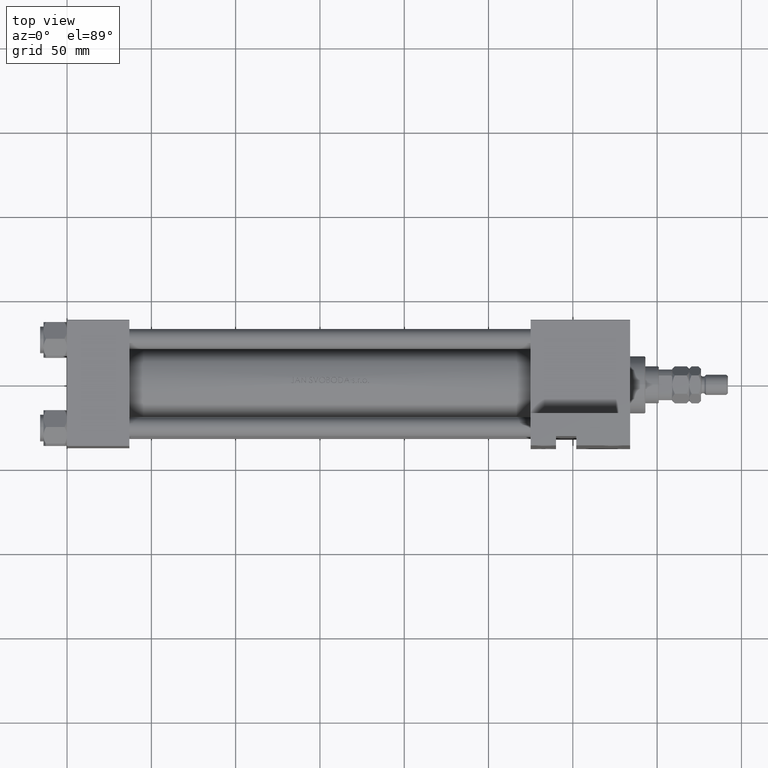
[diagram: clean part render]
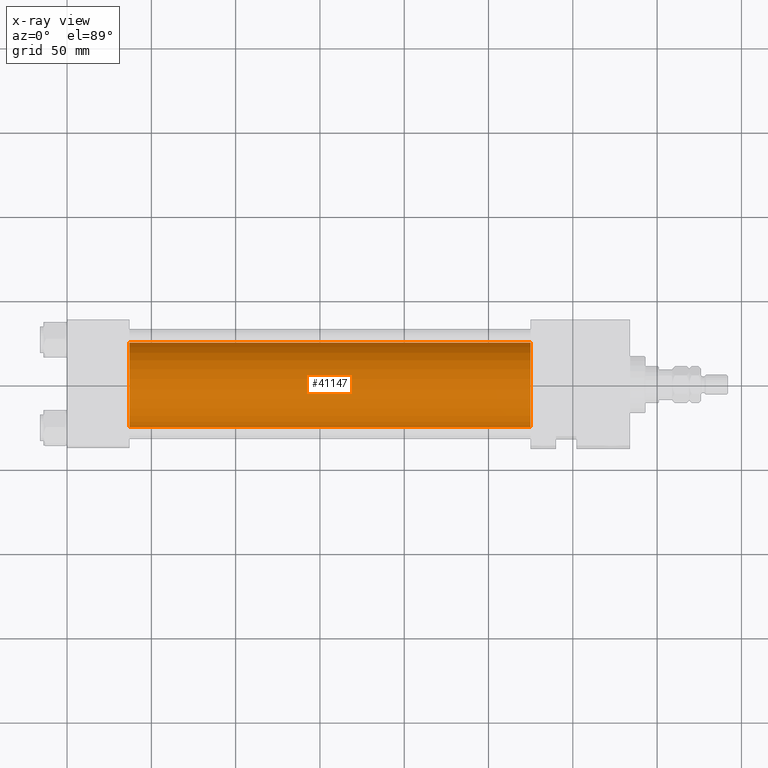
[diagram: x-ray — body ghosted, one internal face saturated and labeled with its STEP entity id]
A machine part, top view, then the same camera in x-ray: the body is ghosted and one INTERNAL B-rep face — a face not visible from any outside direction — is saturated and labeled: STEP entity #41147.
In plain terms, the highlighted cylindrical surface (partial cylindrical patch) has radius 25 mm, axis along (-1, -0, 0).
Its self-contained STEP definition (entity closure, byte-faithful):
#359 = CIRCLE ( 'NONE', #48785, 25.00000000000000000 ) ;
#935 = ORIENTED_EDGE ( 'NONE', *, *, #9558, .T. ) ;
#2788 = VERTEX_POINT ( 'NONE', #17961 ) ;
#3412 = VERTEX_POINT ( 'NONE', #16071 ) ;
#3511 = VERTEX_POINT ( 'NONE', #47892 ) ;
#4900 = DIRECTION ( 'NONE',  ( 0.000000000000000000, 0.000000000000000000, -1.000000000000000000 ) ) ;
#5128 = CARTESIAN_POINT ( 'NONE',  ( 274.9999999999999432, 3.122849337825750617E-15, -25.50000000000000355 ) ) ;
#5227 = VECTOR ( 'NONE', #30303, 1000.000000000000000 ) ;
#8125 = DIRECTION ( 'NONE',  ( 1.000000000000000000, 0.000000000000000000, 0.000000000000000000 ) ) ;
#8521 = LINE ( 'NONE', #27666, #39276 ) ;
#9558 = EDGE_CURVE ( 'NONE', #27247, #2788, #23605, .T. ) ;
#13927 = FACE_OUTER_BOUND ( 'NONE', #27203, .T. ) ;
#14498 = EDGE_CURVE ( 'NONE', #3511, #27247, #48344, .T. ) ;
#16071 = CARTESIAN_POINT ( 'NONE',  ( 37.00000000000000000, 6.123233995736772199E-17, 24.50000000000000000 ) ) ;
#17684 = AXIS2_PLACEMENT_3D ( 'NONE', #25372, #29342, #40547 ) ;
#17961 = CARTESIAN_POINT ( 'NONE',  ( 37.00000000000000000, 3.122849337825750617E-15, -25.50000000000000355 ) ) ;
#18585 = EDGE_CURVE ( 'NONE', #3412, #2788, #359, .T. ) ;
#20453 = DIRECTION ( 'NONE',  ( -1.000000000000000000, -0.000000000000000000, -0.000000000000000000 ) ) ;
#20817 = EDGE_CURVE ( 'NONE', #3511, #3412, #8521, .T. ) ;
#23605 = LINE ( 'NONE', #27569, #5227 ) ;
#25261 = ORIENTED_EDGE ( 'NONE', *, *, #14498, .T. ) ;
#25372 = CARTESIAN_POINT ( 'NONE',  ( 274.9999999999999432, 6.123233995736772199E-17, -0.5000000000000004441 ) ) ;
#27203 = EDGE_LOOP ( 'NONE', ( #25261, #935, #30931, #47078 ) ) ;
#27247 = VERTEX_POINT ( 'NONE', #5128 ) ;
#27569 = CARTESIAN_POINT ( 'NONE',  ( 274.9999999999999432, 3.122849337825750617E-15, -25.50000000000000355 ) ) ;
#27666 = CARTESIAN_POINT ( 'NONE',  ( 274.9999999999999432, 6.123233995736772199E-17, 24.50000000000000000 ) ) ;
#29342 = DIRECTION ( 'NONE',  ( -1.000000000000000000, -0.000000000000000000, -0.000000000000000000 ) ) ;
#29581 = CYLINDRICAL_SURFACE ( 'NONE', #17684, 25.00000000000000000 ) ;
#30303 = DIRECTION ( 'NONE',  ( -1.000000000000000000, -0.000000000000000000, -0.000000000000000000 ) ) ;
#30931 = ORIENTED_EDGE ( 'NONE', *, *, #18585, .F. ) ;
#31404 = CARTESIAN_POINT ( 'NONE',  ( 274.9999999999999432, 6.123233995736772199E-17, -0.5000000000000004441 ) ) ;
#35623 = AXIS2_PLACEMENT_3D ( 'NONE', #31404, #46343, #38383 ) ;
#38383 = DIRECTION ( 'NONE',  ( 0.000000000000000000, 0.000000000000000000, -1.000000000000000000 ) ) ;
#39198 = CARTESIAN_POINT ( 'NONE',  ( 37.00000000000000000, 6.123233995736772199E-17, -0.5000000000000004441 ) ) ;
#39276 = VECTOR ( 'NONE', #20453, 1000.000000000000000 ) ;
#40547 = DIRECTION ( 'NONE',  ( 0.000000000000000000, 0.000000000000000000, 1.000000000000000000 ) ) ;
#41147 = ADVANCED_FACE ( 'NONE', ( #13927 ), #29581, .F. ) ;
#46343 = DIRECTION ( 'NONE',  ( 1.000000000000000000, 0.000000000000000000, 0.000000000000000000 ) ) ;
#47078 = ORIENTED_EDGE ( 'NONE', *, *, #20817, .F. ) ;
#47892 = CARTESIAN_POINT ( 'NONE',  ( 274.9999999999999432, 6.123233995736772199E-17, 24.50000000000000000 ) ) ;
#48344 = CIRCLE ( 'NONE', #35623, 25.00000000000000000 ) ;
#48785 = AXIS2_PLACEMENT_3D ( 'NONE', #39198, #8125, #4900 ) ;